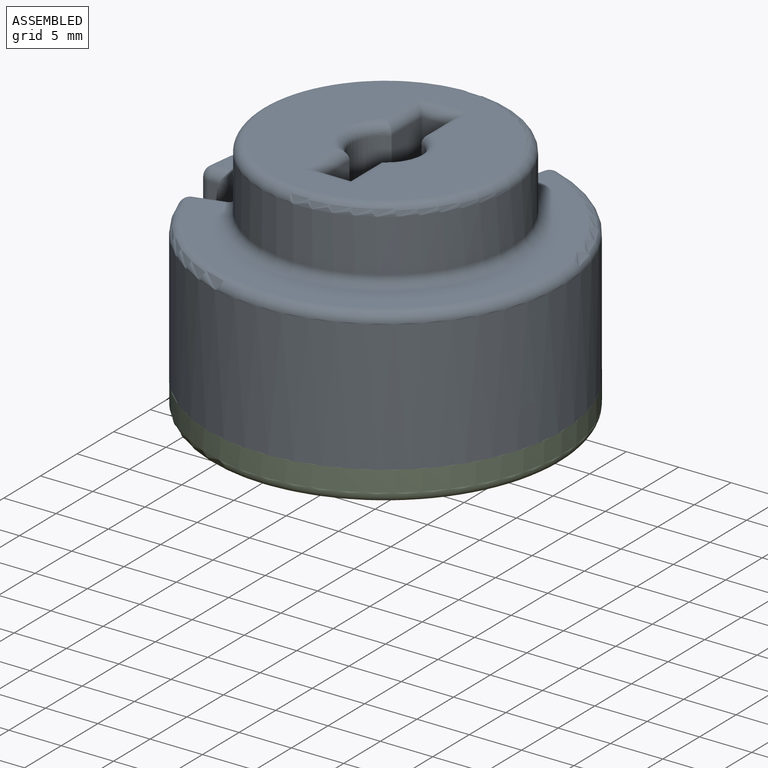
[diagram: assembled view]
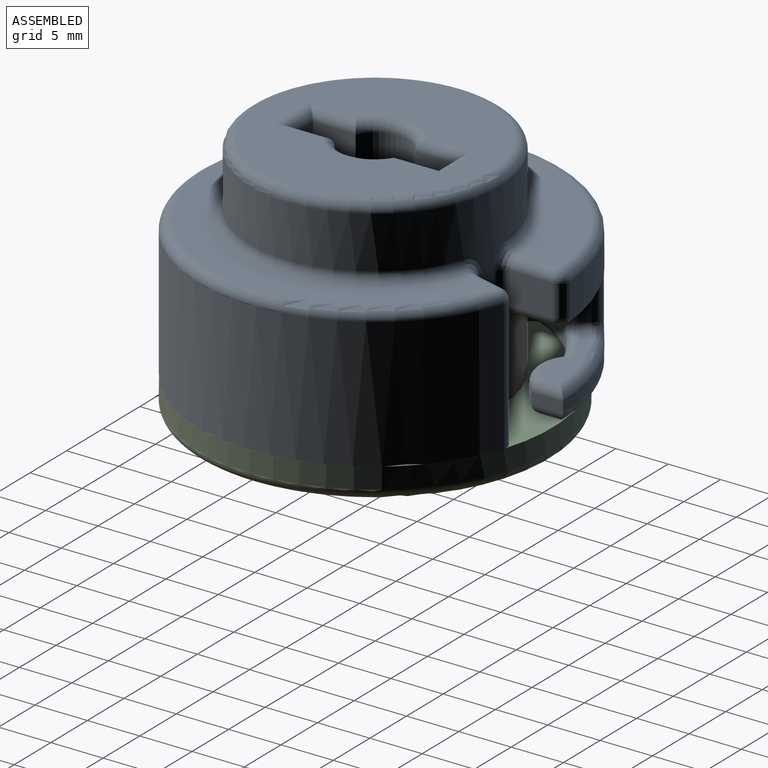
[diagram: assembled view, second angle]
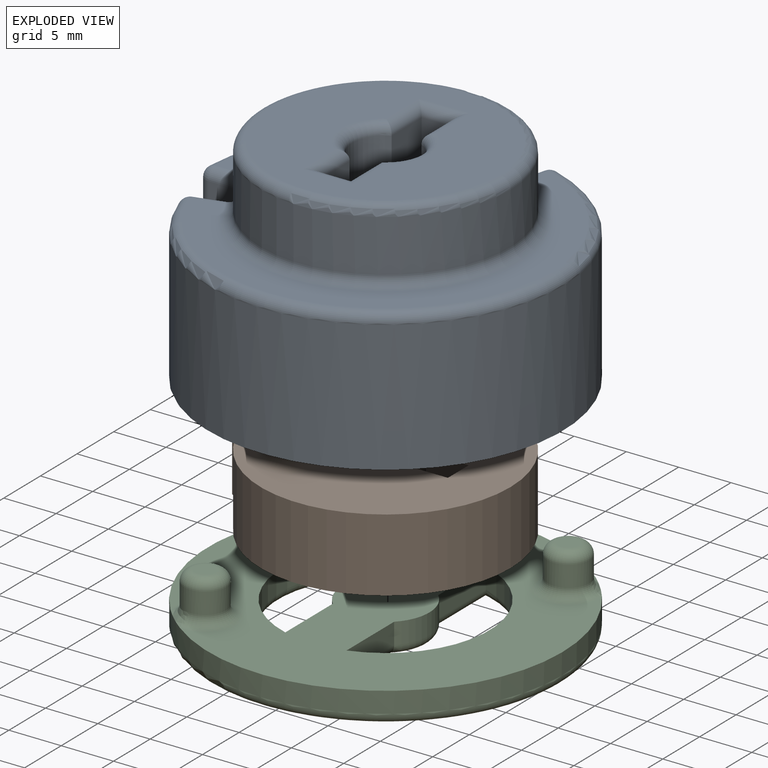
[diagram: exploded view]
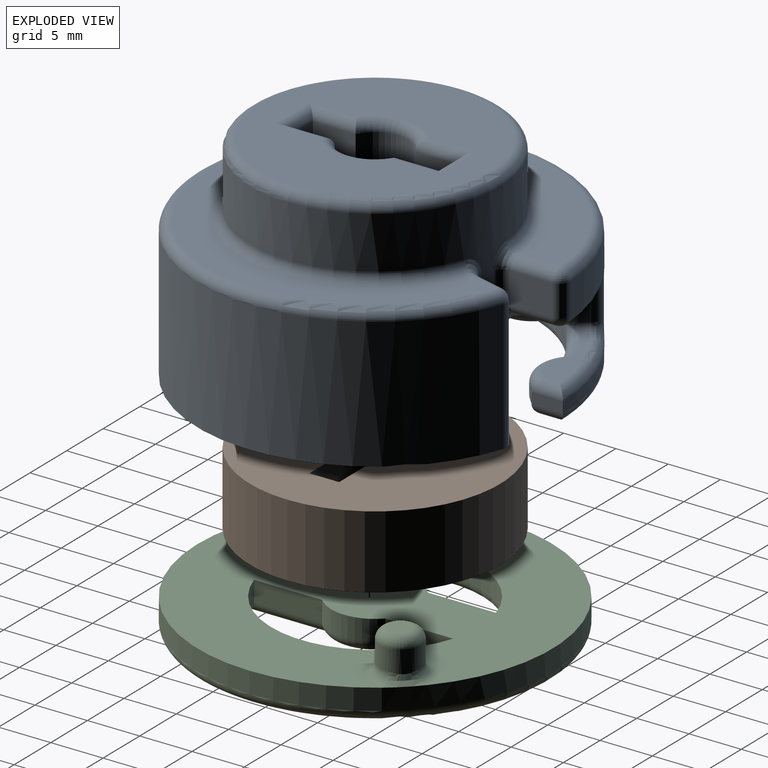
[diagram: exploded view, second angle]
ASSEMBLY  parts=3 mates=2
PART A: 128 faces, bbox 37.8x37.8x20.5 mm
  f0: cylinder r=11.95mm len=23.9mm, axis (0,0,-1), area 398.1mm2, adj f8,f53,f57,f59,f61,f62,f67,f75
  f1: plane 8.04x6.95mm, normal (0,0,-1), area 27.3mm2, adj f4,f5,f6,f49,f51
  f2: plane 8.04x6.95mm, normal (0,0,-1), area 27.3mm2, adj f5,f6,f7,f50,f56
  f3: plane 27.1x27.1mm, normal (0,0,-1), area 195.5mm2, adj f5,f6,f49,f50
  f4: plane 12.5x3.83mm, normal (-0.97,0.26,0), area 44.8mm2, adj f1,f6,f8,f51,f53,f54
  f5: cylinder r=16.95mm len=33.02mm, axis (0,0,1), area 860.9mm2, adj f1,f2,f3,f49,f50,f51,f55,f56
  f6: cylinder r=11.95mm len=23.49mm, axis (0,0,1), area 375.4mm2, adj f1,f2,f3,f4,f7,f8,f49,f50
  f7: plane 12.5x3.83mm, normal (-0.26,0.97,0), area 44.8mm2, adj f2,f6,f8,f56,f60,f62
  f8: plane 24.42x24.42mm, normal (0,0,-1), area 290.9mm2, adj f0,f4,f6,f7,f27,f28,f29,f30
  f9: plane 31.07x31.07mm, normal (0,0,1), area 175.6mm2, adj f54,f55,f59,f60
  f10: plane 4.01x3mm, normal (1,0,0), area 12mm2, adj f87,f88,f95,f96
  f11: plane 15.92x15.92mm, normal (0,0,1), area 85.9mm2, adj f76,f77,f88,f89
  f12: plane 4.01x3mm, normal (0,-1,0), area 12mm2, adj f74,f75,f77,f78
  f13: plane 15.92x15.92mm, normal (0,0,-1), area 66mm2, adj f73,f74,f85,f86,f90,f94,f95,f100
  f14: cylinder r=17.95mm len=17.95mm, axis (0,0,1), area 137.5mm2, adj f20,f21,f65,f68,f72,f73,f78,f80
  f15: cylinder r=14.95mm len=8.26mm, axis (0,0,1), area 29.3mm2, adj f23,f24,f70,f79,f84,f94,f98,f99
  f16: plane 3x0.82mm, normal (-0.58,-0.82,0), area 3mm2, adj f71,f72,f84,f85
  f17: plane 3x0.82mm, normal (0.82,0.58,0), area 3mm2, adj f99,f104,f107,f110
  f18: plane 7.98x3.36mm, normal (0,0,1), area 12.9mm2, adj f93,f97,f98,f102,f106,f107
  f19: cylinder r=14.95mm len=1mm, axis (0,0,-1), area 0.3mm2, adj f20,f24,f64,f114
  f20: plane 3x1mm, normal (0,-1,0), area 3mm2, adj f14,f19,f63,f112
  f21: plane 3x1mm, normal (1,0,0), area 3mm2, adj f14,f22,f102,f113
  f22: cylinder r=14.95mm len=1mm, axis (0,0,-1), area 0.3mm2, adj f21,f23,f97,f115
  f23: cylinder r=3.5mm len=5.26mm, axis (0,0,-1), area 6.1mm2, adj f15,f22,f93,f117
  f24: cylinder r=3.5mm len=5.26mm, axis (0,0,-1), area 6.1mm2, adj f15,f19,f66,f116
  f25: plane 7.98x3.36mm, normal (0,0,1), area 12.9mm2, adj f63,f64,f65,f66,f70,f71
  f26: plane 15.92x15.92mm, normal (0,0,-1), area 33.3mm2, adj f111,f112,f113,f114,f115,f116,f117,f118
  f27: plane 12x4.08mm, normal (1,0,0), area 49mm2, adj f8,f28,f34,f124
  f28: cylinder r=3.2mm len=12mm, axis (0,0,-1), area 85.2mm2, adj f8,f27,f29,f122
  f29: plane 12x4.08mm, normal (1,0,0), area 49mm2, adj f8,f28,f30,f120
  f30: plane 12x2.85mm, normal (0,-1,0), area 34.2mm2, adj f8,f29,f31,f119
  f31: plane 12x4.08mm, normal (-1,0,0), area 49mm2, adj f8,f30,f32,f121
  f32: cylinder r=3.2mm len=12mm, axis (0,0,-1), area 85.2mm2, adj f8,f31,f33,f123
  f33: plane 12x4.08mm, normal (-1,0,0), area 49mm2, adj f8,f32,f34,f125
  f34: plane 12x2.85mm, normal (0,1,0), area 34.2mm2, adj f8,f27,f33,f126
  f35: plane 21.9x21.9mm, normal (0,0,1), area 282.5mm2, adj f119,f120,f121,f122,f123,f124,f125,f126
  f36: cylinder r=2.1mm len=3.59mm, axis (0,0,-1), area 20.5mm2, adj f37,f38,f39,f45
  f37: plane 14.91x6.42mm, normal (0,0,-1), area 63.8mm2, adj f36,f38,f39,f40
  f38: cylinder r=5.47mm len=7.74mm, axis (0,0,-1), area 26.7mm2, adj f36,f37,f40,f46
  f39: cylinder r=9.67mm len=13.68mm, axis (0,0,-1), area 47.1mm2, adj f36,f37,f40,f47
  f40: cylinder r=2.1mm len=3.59mm, axis (0,0,-1), area 20.5mm2, adj f37,f38,f39,f48
  f41: plane 4x4mm, normal (0,0,-1), area 12.6mm2, adj f42
  f42: cylinder r=2mm len=4mm, axis (0,0,-1), area 37.7mm2, adj f41,f49
  f43: cylinder r=2mm len=4mm, axis (0,0,-1), area 37.7mm2, adj f44,f50
  f44: plane 4x4mm, normal (0,0,-1), area 12.6mm2, adj f43
  f45: torus R=3.1mm, axis (0,0,-1), area 12.2mm2, adj f8,f36,f46,f47
  f46: torus R=4.47mm, axis (0,0,-1), area 12.6mm2, adj f8,f38,f45,f48
  f47: torus R=10.68mm, axis (0,0,-1), area 24.8mm2, adj f8,f39,f45,f48
  f48: torus R=3.1mm, axis (0,0,-1), area 12.2mm2, adj f8,f40,f46,f47
  f49: torus R=3mm, axis (0,0,-1), area 21mm2, adj f1,f3,f5,f6,f42
  f50: torus R=3mm, axis (0,0,-1), area 21mm2, adj f2,f3,f5,f6,f43
  f51: cylinder r=1mm len=12.5mm, axis (0,0,1), area 20.4mm2, adj f1,f4,f5,f52
  f52: sphere r=1mm, area 1.6mm2, adj f51,f54,f55
  f53: cylinder r=1mm len=5mm, axis (0,0,-1), area 7.5mm2, adj f0,f4,f8,f57
  f54: cylinder r=1mm len=3.16mm, axis (0.26,0.97,0), area 4.7mm2, adj f4,f9,f52,f57
  f55: torus R=15.95mm, axis (0,0,-1), area 105.9mm2, adj f5,f9,f52,f58
  f56: cylinder r=1mm len=12.5mm, axis (0,0,1), area 20.4mm2, adj f2,f5,f7,f58
  f57: bspline ~2.33x2.32mm, area 3.2mm2, adj f0,f53,f54,f59
  f58: sphere r=1mm, area 1.6mm2, adj f55,f56,f60
  f59: torus R=12.95mm, axis (0,0,-1), area 78mm2, adj f0,f9,f57,f61
  f60: cylinder r=1mm len=3.16mm, axis (0.97,0.26,0), area 4.7mm2, adj f7,f9,f58,f61
  f61: bspline ~2.45x2.27mm, area 3.2mm2, adj f0,f59,f60,f62
  f62: cylinder r=1mm len=5mm, axis (0,0,-1), area 7.5mm2, adj f0,f7,f8,f61
  f63: cylinder r=1mm len=3mm, axis (1,0,0), area 3.1mm2, adj f20,f25,f64,f65
  f64: torus R=15.95mm, axis (0,0,-1), area 0.3mm2, adj f19,f25,f63,f66
  f65: torus R=16.95mm, axis (0,0,-1), area 14.6mm2, adj f14,f25,f63,f68
  f66: torus R=2.5mm, axis (0,0,-1), area 9.6mm2, adj f24,f25,f64,f70
  f67: bspline ~2.33x2.26mm, area 3.2mm2, adj f0,f75,f76,f77
  f68: bspline ~2.46x2.33mm, area 3.5mm2, adj f14,f65,f71,f72
  f69: sphere r=1mm, area 1.6mm2, adj f73,f74,f78
  f70: torus R=15.95mm, axis (0,0,-1), area 4.6mm2, adj f15,f25,f66,f79
  f71: cylinder r=1mm len=1.4mm, axis (-0.82,0.58,0), area 1.6mm2, adj f16,f25,f68,f79
  f72: cylinder r=1mm len=3mm, axis (0,0,1), area 4.9mm2, adj f14,f16,f68,f80
  f73: torus R=16.95mm, axis (0,0,-1), area 13.8mm2, adj f13,f14,f69,f80
  f74: cylinder r=1mm len=4.01mm, axis (1,0,0), area 6.3mm2, adj f12,f13,f69,f81
  f75: cylinder r=1mm len=3mm, axis (0,0,-1), area 4.5mm2, adj f0,f12,f67,f81
  f76: torus R=12.95mm, axis (0,0,-1), area 27.4mm2, adj f0,f11,f67,f82
  f77: cylinder r=1mm len=4.01mm, axis (-1,0,0), area 6.3mm2, adj f11,f12,f67,f83
  f78: cylinder r=1mm len=3mm, axis (0,0,1), area 4.9mm2, adj f12,f14,f69,f83
  f79: bspline ~2.45x2.01mm, area 3.2mm2, adj f15,f70,f71,f84
  f80: bspline ~2.45x2.41mm, area 3.5mm2, adj f14,f72,f73,f85
  f81: bspline ~2.45x2.15mm, area 3.2mm2, adj f0,f74,f75,f86
  f82: bspline ~2.45x2.15mm, area 3.2mm2, adj f0,f76,f87,f88
  f83: sphere r=1mm, area 1.6mm2, adj f77,f78,f89
  f84: cylinder r=1mm len=3mm, axis (0,0,1), area 4.5mm2, adj f15,f16,f79,f90
  f85: cylinder r=1mm len=1.4mm, axis (-0.82,0.58,0), area 1.6mm2, adj f13,f16,f80,f90
  f86: torus R=12.95mm, axis (0,0,-1), area 27.4mm2, adj f8,f13,f81,f91
  f87: cylinder r=1mm len=3mm, axis (0,0,-1), area 4.5mm2, adj f0,f10,f82,f91
  f88: cylinder r=1mm len=4.01mm, axis (0,-1,0), area 6.3mm2, adj f10,f11,f82,f92
  f89: torus R=16.95mm, axis (0,0,-1), area 40.1mm2, adj f11,f14,f83,f92
  f90: torus R=2mm, axis (0,0,-1), area 3.2mm2, adj f13,f84,f85,f94
  f91: bspline ~2.33x2.26mm, area 3.2mm2, adj f0,f86,f87,f95
  f92: sphere r=1mm, area 1.6mm2, adj f88,f89,f96
  f93: torus R=2.5mm, axis (0,0,-1), area 9.6mm2, adj f18,f23,f97,f98
  f94: torus R=13.95mm, axis (0,0,-1), area 4.8mm2, adj f13,f15,f90,f100
  f95: cylinder r=1mm len=4.01mm, axis (0,1,0), area 6.3mm2, adj f10,f13,f91,f101
  f96: cylinder r=1mm len=3mm, axis (0,0,1), area 4.9mm2, adj f10,f14,f92,f101
  f97: torus R=15.95mm, axis (0,0,-1), area 0.3mm2, adj f18,f22,f93,f102
  f98: torus R=15.95mm, axis (0,0,-1), area 4.6mm2, adj f15,f18,f93,f103
  f99: cylinder r=1mm len=3mm, axis (0,0,1), area 4.5mm2, adj f15,f17,f100,f103
  f100: torus R=2mm, axis (0,0,-1), area 3.2mm2, adj f13,f94,f99,f104
  f101: sphere r=1mm, area 1.6mm2, adj f95,f96,f105
  f102: cylinder r=1mm len=3mm, axis (0,1,0), area 3.1mm2, adj f18,f21,f97,f106
  f103: bspline ~2.33x2.04mm, area 3.2mm2, adj f15,f98,f99,f107
  f104: cylinder r=1mm len=1.4mm, axis (0.58,-0.82,0), area 1.6mm2, adj f13,f17,f100,f108
  f105: torus R=16.95mm, axis (0,0,-1), area 13.8mm2, adj f13,f14,f101,f108
  f106: torus R=16.95mm, axis (0,0,-1), area 14.6mm2, adj f14,f18,f102,f109
  f107: cylinder r=1mm len=1.4mm, axis (0.58,-0.82,0), area 1.6mm2, adj f17,f18,f103,f109
  f108: bspline ~2.46x2.33mm, area 3.5mm2, adj f14,f104,f105,f110
  f109: bspline ~2.45x2.41mm, area 3.5mm2, adj f14,f106,f107,f110
  f110: cylinder r=1mm len=3mm, axis (0,0,1), area 4.9mm2, adj f14,f17,f108,f109
  f111: torus R=16.95mm, axis (0,0,-1), area 41.8mm2, adj f14,f26,f112,f113
  f112: cylinder r=1mm len=3mm, axis (-1,0,0), area 3.1mm2, adj f20,f26,f111,f114
  f113: cylinder r=1mm len=3mm, axis (0,-1,0), area 3.1mm2, adj f21,f26,f111,f115
  f114: torus R=15.95mm, axis (0,0,-1), area 0.3mm2, adj f19,f26,f112,f116
  f115: torus R=15.95mm, axis (0,0,-1), area 0.3mm2, adj f22,f26,f113,f117
  f116: torus R=2.5mm, axis (0,0,-1), area 9.6mm2, adj f24,f26,f114,f118
  f117: torus R=2.5mm, axis (0,0,-1), area 9.6mm2, adj f23,f26,f115,f118
  f118: torus R=15.95mm, axis (0,0,-1), area 20.3mm2, adj f15,f26,f116,f117
  f119: cylinder r=1mm len=4.85mm, axis (-1,0,0), area 6mm2, adj f30,f35,f120,f121
  f120: cylinder r=1mm len=5.08mm, axis (0,-1,0), area 6.8mm2, adj f29,f35,f119,f122
  f121: cylinder r=1mm len=5.08mm, axis (0,1,0), area 6.8mm2, adj f31,f35,f119,f123
  f122: torus R=4.2mm, axis (0,0,1), area 11.5mm2, adj f28,f35,f120,f124
  f123: torus R=4.2mm, axis (0,0,1), area 11.5mm2, adj f32,f35,f121,f125
  f124: cylinder r=1mm len=5.08mm, axis (0,-1,0), area 6.8mm2, adj f27,f35,f122,f126
  f125: cylinder r=1mm len=5.08mm, axis (0,1,0), area 6.8mm2, adj f33,f35,f123,f126
  f126: cylinder r=1mm len=4.85mm, axis (1,0,0), area 6mm2, adj f34,f35,f124,f125
  f127: torus R=10.95mm, axis (0,0,1), area 114.4mm2, adj f0,f35
PART B: 22 faces, bbox 23.9x25.9x11 mm
  f0: plane 7x1.11mm, normal (-1,0,0), area 7.8mm2, adj f3,f5,f14,f16
  f1: plane 7x1.11mm, normal (1,0,0), area 7.8mm2, adj f3,f5,f15,f17
  f2: cylinder r=11.95mm len=7mm, axis (0,0,-1), area 13.5mm2, adj f3,f5,f14,f15
  f3: plane 25.9x23.9mm, normal (0,0,-1), area 400.2mm2, adj f0,f1,f2,f4,f6,f7,f8,f9
  f4: plane 7x2.85mm, normal (0,-1,0), area 19.9mm2, adj f3,f5,f10,f11
  f5: plane 25.9x23.9mm, normal (0,0,1), area 371.9mm2, adj f0,f1,f2,f4,f6,f7,f8,f9
  f6: plane 7x4.08mm, normal (1,0,0), area 28.6mm2, adj f3,f5,f7,f12
  f7: plane 7x2.85mm, normal (0,1,0), area 19.9mm2, adj f3,f5,f6,f8
  f8: plane 7x4.08mm, normal (-1,0,0), area 28.6mm2, adj f3,f5,f7,f9
  f9: cylinder r=3.2mm len=7mm, axis (0,0,-1), area 49.7mm2, adj f3,f5,f8,f10
  f10: plane 7x4.08mm, normal (-1,0,0), area 28.6mm2, adj f3,f4,f5,f9
  f11: plane 7x4.08mm, normal (1,0,0), area 28.6mm2, adj f3,f4,f5,f12
  f12: cylinder r=3.2mm len=7mm, axis (0,0,-1), area 49.7mm2, adj f3,f5,f6,f11
  f13: cylinder r=11.95mm len=23.9mm, axis (0,0,-1), area 499.6mm2, adj f3,f5,f16,f17
  f14: cylinder r=0.5mm len=7mm, axis (0,0,-1), area 5.2mm2, adj f0,f2,f3,f5
  f15: cylinder r=0.5mm len=7mm, axis (0,0,-1), area 5.2mm2, adj f1,f2,f3,f5
  f16: cylinder r=0.5mm len=7mm, axis (0,0,-1), area 5mm2, adj f0,f3,f5,f13
  f17: cylinder r=0.5mm len=7mm, axis (0,0,-1), area 5mm2, adj f1,f3,f5,f13
  f18: cylinder r=2mm len=4mm, axis (0,0,-1), area 25.1mm2, adj f20,f21
  f19: plane 2x2mm, normal (0,0,1), area 3.1mm2, adj f21
  f20: torus R=3mm, axis (0,0,-1), area 23.3mm2, adj f5,f18
  f21: torus R=1mm, axis (0,0,1), area 16.2mm2, adj f18,f19
PART C: 30 faces, bbox 36.7x36.7x7 mm
  f0: plane 6.5x2mm, normal (-1,0,0), area 13mm2, adj f1,f8,f10,f21
  f1: cylinder r=4.2mm len=6.03mm, axis (0,0,1), area 13.4mm2, adj f0,f2,f10,f22
  f2: plane 6.5x2mm, normal (-1,0,0), area 13mm2, adj f1,f8,f10,f24
  f3: cylinder r=9.95mm len=19.02mm, axis (0,0,1), area 50.6mm2, adj f4,f6,f10,f28
  f4: plane 6.5x2mm, normal (1,0,0), area 13mm2, adj f3,f5,f10,f26
  f5: cylinder r=4.2mm len=6.03mm, axis (0,0,1), area 13.4mm2, adj f4,f6,f10,f27
  f6: plane 6.5x2mm, normal (1,0,0), area 13mm2, adj f3,f5,f10,f29
  f7: cylinder r=16.95mm len=33.9mm, axis (0,0,1), area 213mm2, adj f10,f16,f19,f25
  f8: cylinder r=9.95mm len=19.02mm, axis (0,0,1), area 50.6mm2, adj f0,f2,f10,f23
  f9: plane 31.9x31.9mm, normal (0,0,-1), area 515.5mm2, adj f21,f22,f23,f24,f25,f26,f27,f28
  f10: plane 33.9x33.9mm, normal (0,0,1), area 662.8mm2, adj f0,f1,f2,f3,f4,f5,f6,f7
  f11: cylinder r=2mm len=4mm, axis (0,0,-1), area 25.1mm2, adj f15,f16,f17
  f12: plane 2x2mm, normal (0,0,1), area 3.1mm2, adj f17
  f13: cylinder r=2mm len=4mm, axis (0,0,-1), area 25.1mm2, adj f18,f19,f20
  f14: plane 2x2mm, normal (0,0,1), area 3.1mm2, adj f20
  f15: torus R=3mm, axis (0,0,-1), area 18.6mm2, adj f10,f11,f16
  f16: bspline ~2.97x2.86mm, area 3.5mm2, adj f7,f11,f15
  f17: torus R=1mm, axis (0,0,-1), area 16.2mm2, adj f11,f12
  f18: torus R=3mm, axis (0,0,-1), area 18.6mm2, adj f10,f13,f19
  f19: bspline ~2.98x2.84mm, area 3.5mm2, adj f7,f13,f18
  f20: torus R=1mm, axis (0,0,-1), area 16.2mm2, adj f13,f14
  f21: cylinder r=1mm len=8.22mm, axis (0,-1,0), area 11.6mm2, adj f0,f9,f22,f23
  f22: torus R=3.2mm, axis (0,0,-1), area 10.4mm2, adj f1,f9,f21,f24
  f23: torus R=10.95mm, axis (0,0,-1), area 43.2mm2, adj f8,f9,f21,f24
  f24: cylinder r=1mm len=8.22mm, axis (0,-1,0), area 11.6mm2, adj f2,f9,f22,f23
  f25: torus R=15.95mm, axis (0,0,-1), area 163.7mm2, adj f7,f9
  f26: cylinder r=1mm len=8.22mm, axis (0,1,0), area 11.6mm2, adj f4,f9,f27,f28
  f27: torus R=3.2mm, axis (0,0,-1), area 10.4mm2, adj f5,f9,f26,f29
  f28: torus R=10.95mm, axis (0,0,-1), area 43.2mm2, adj f3,f9,f26,f29
  f29: cylinder r=1mm len=8.22mm, axis (0,1,0), area 11.6mm2, adj f6,f9,f27,f28
PLACE A at identity fixed
PLACE B rot(axis=(0,0,1),90deg) t=(0,0,0)mm
PLACE C at identity
MATE fastened C.f13 <-> A.f42  axis (0,0,1) through (10.59,9.83,3.5)mm
MATE revolute B.f12 <-> A.f32  axis (0,0,1) through (0,0,7)mm
